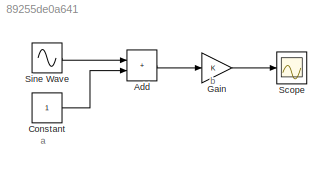
MODEL slx_89255de0a641
KIND model
CONFIG AbsTol = auto
CONFIG EnableMultiTasking = off
CONFIG FixedStep = auto
CONFIG MaxStep = auto
CONFIG MinStep = auto
CONFIG RelTol = 1e-3
CONFIG SampleTimeConstraint = Unconstrained
CONFIG SolverName = VariableStepAuto
CONFIG StartTime = 0.0
CONFIG StopTime = inf
BLOCK [Sum] Add
  IconShape = rectangular
BLOCK [Constant] Constant
BLOCK [Gain] Gain
BLOCK [Scope] Scope
  Floating = off
  GraphicalSettings = {"GraphicalSettings":{"LegacySettings":true,"Style":{"Style":{"CurrentConfiguration":"extmgr.ConfigurationSet","MinimizeControls":"false","PlotType":"Auto","Version":"2018b"}}}}
  NumInputPorts = 1
  WasSavedAsWebScope = on
BLOCK [Sin] Sine Wave
  SampleTime = 0
ANNOTATION (root): a
ANNOTATION (root): b
LINE Add:1 -> Gain:1
LINE Constant:1 -> Add:2
LINE Gain:1 -> Scope:1
LINE Sine Wave:1 -> Add:1
